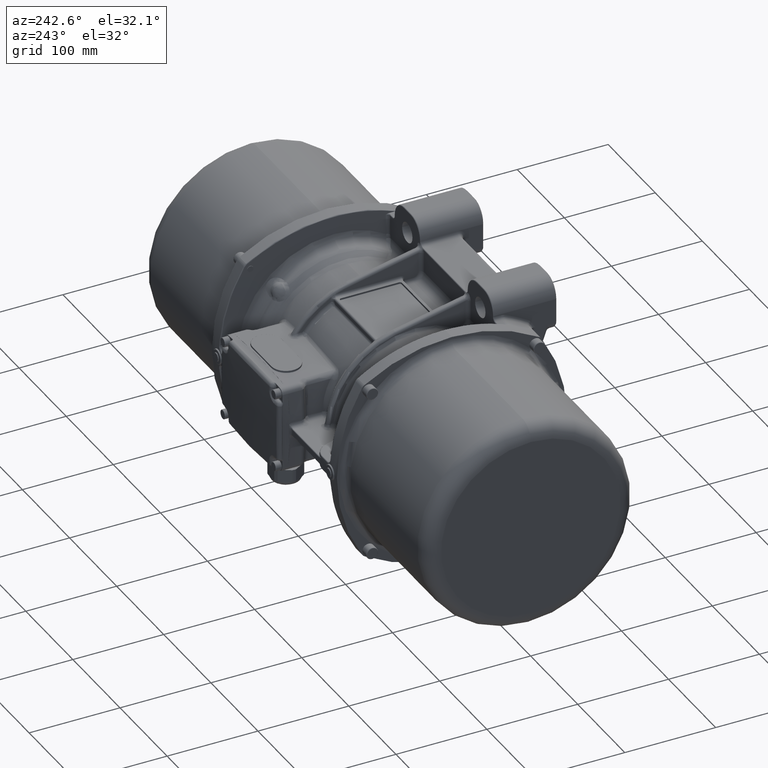
[diagram: clean part render]
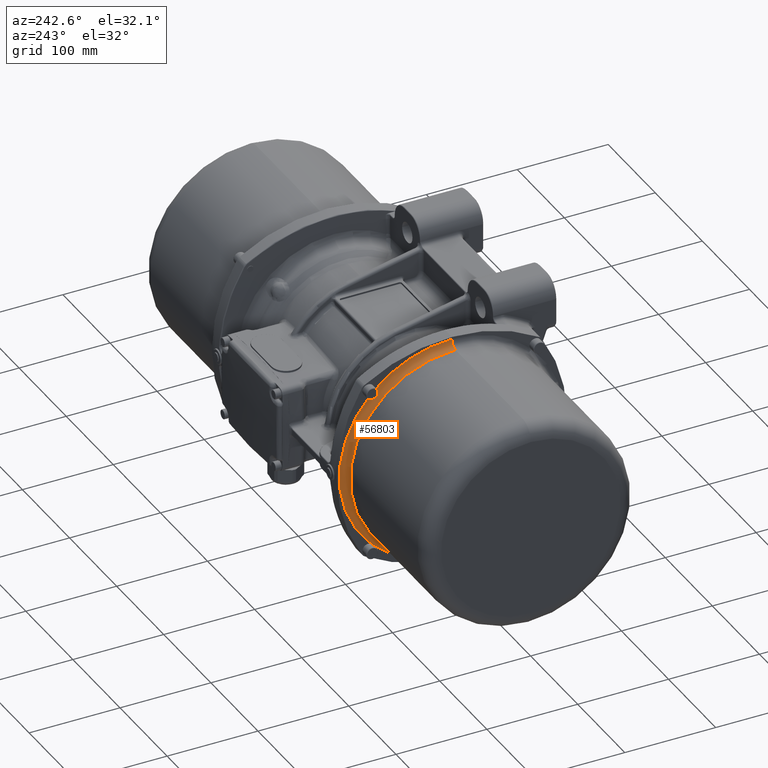
[diagram: same view with one face highlighted and labeled with its STEP entity id]
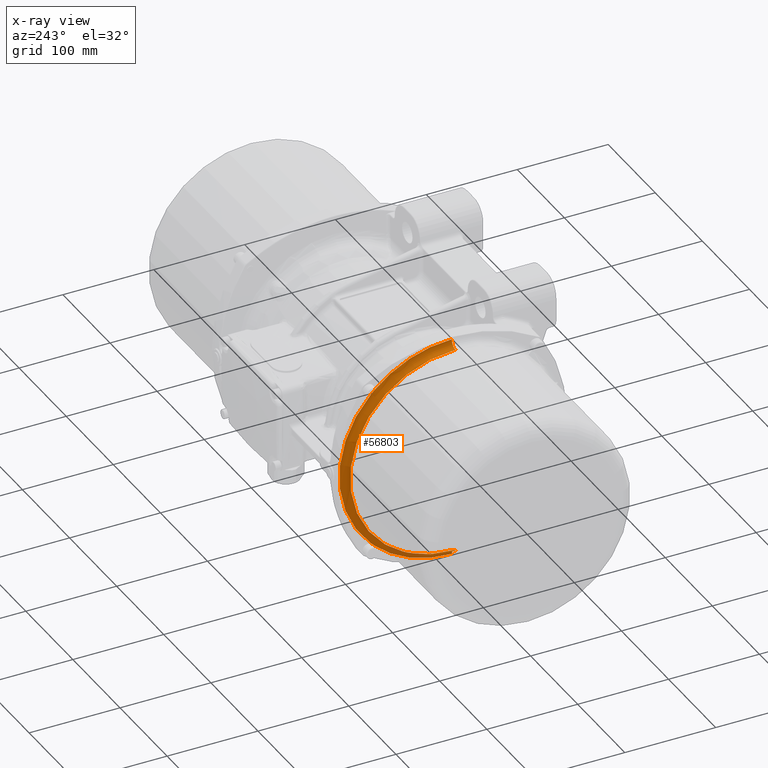
[diagram: x-ray of the same camera — body ghosted, the highlighted face saturated]
A machine part, auxiliary view. The second image highlights one B-rep face of the part: STEP entity #56803.
The next image is the same camera in x-ray: the body ghosted, the highlighted face saturated — about 9% of this face is hidden behind the body in this view.
In plain terms, the highlighted toroidal blend (fillet) surface has major radius 123.75 mm and minor (blend) radius 7.8 mm.
Its self-contained STEP definition (entity closure, byte-faithful):
#758 = VERTEX_POINT ( 'NONE', #99797 ) ;
#4023 = DIRECTION ( 'NONE',  ( 0.0000000000000000000, 0.0000000000000000000, -1.000000000000000000 ) ) ;
#4628 = AXIS2_PLACEMENT_3D ( 'NONE', #60983, #16210, #50496 ) ;
#9873 = EDGE_CURVE ( 'NONE', #12069, #758, #48205, .T. ) ;
#12069 = VERTEX_POINT ( 'NONE', #34511 ) ;
#12726 = DIRECTION ( 'NONE',  ( 0.0000000000000000000, 1.224646799147352000E-016, 1.000000000000000000 ) ) ;
#14062 = AXIS2_PLACEMENT_3D ( 'NONE', #136389, #91199, #70253 ) ;
#14494 = CARTESIAN_POINT ( 'NONE',  ( -132.7012508799867600, 88.22362580664417900, 86.57178570240186800 ) ) ;
#15941 = CARTESIAN_POINT ( 'NONE',  ( -132.7000000000000200, 86.26410856226151200, 88.72748206676629900 ) ) ;
#16210 = DIRECTION ( 'NONE',  ( 0.0000000000000000000, -1.000000000000000000, 0.0000000000000000000 ) ) ;
#16425 = CARTESIAN_POINT ( 'NONE',  ( -132.7000000000077200, 86.55527465708083000, 88.21192260499695700 ) ) ;
#16432 = VERTEX_POINT ( 'NONE', #117840 ) ;
#22793 = CIRCLE ( 'NONE', #14062, 123.7500000000000000 ) ;
#23104 = DIRECTION ( 'NONE',  ( 1.000000000000000000, 0.0000000000000000000, 0.0000000000000000000 ) ) ;
#24901 = CIRCLE ( 'NONE', #126215, 123.7500000000000000 ) ;
#26905 = CARTESIAN_POINT ( 'NONE',  ( -132.7040165105375700, 87.53068186429065600, 87.12431305537354800 ) ) ;
#28242 = ORIENTED_EDGE ( 'NONE', *, *, #41893, .T. ) ;
#28843 = ORIENTED_EDGE ( 'NONE', *, *, #141856, .F. ) ;
#29111 = CARTESIAN_POINT ( 'NONE',  ( -132.7040165105375400, 87.12431305537485600, -87.53068186428919300 ) ) ;
#31129 = B_SPLINE_CURVE_WITH_KNOTS ( 'NONE', 3,
 ( #15941, #16425, #96039, #26905, #59727, #14494, #49258, #71692 ),
 .UNSPECIFIED., .F., .F.,
 ( 4, 2, 2, 4 ),
 ( 0.0000000000000000000, 0.001751077840514143100, 0.002626616760771229500, 0.003502155681028315600 ),
 .UNSPECIFIED. ) ;
#32396 = VERTEX_POINT ( 'NONE', #53703 ) ;
#34511 = CARTESIAN_POINT ( 'NONE',  ( -132.7000000000000200, 1.515500413944849700E-014, 123.7500000000000000 ) ) ;
#38800 = CARTESIAN_POINT ( 'NONE',  ( -132.7000000000000200, 0.0000000000000000000, 0.0000000000000000000 ) ) ;
#40560 = CARTESIAN_POINT ( 'NONE',  ( -132.7000000000000200, 86.26410856225750500, -88.72748206677360400 ) ) ;
#40905 = CARTESIAN_POINT ( 'NONE',  ( -132.7000000000000200, 86.26410856226151200, 88.72748206676629900 ) ) ;
#41893 = EDGE_CURVE ( 'NONE', #32396, #91279, #141179, .T. ) ;
#43521 = CIRCLE ( 'NONE', #83579, 123.7500000000000000 ) ;
#45543 = CARTESIAN_POINT ( 'NONE',  ( -140.5000000000000000, 1.515500413944849700E-014, 123.7500000000000000 ) ) ;
#48052 = TOROIDAL_SURFACE ( 'NONE', #105033, 123.7500000000000000, 7.799999999999999800 ) ;
#48205 = CIRCLE ( 'NONE', #141357, 7.800000000000001600 ) ;
#49258 = CARTESIAN_POINT ( 'NONE',  ( -132.7000000000036800, 88.46970000156798600, 86.40969292798925500 ) ) ;
#50496 = DIRECTION ( 'NONE',  ( 0.0000000000000000000, 0.0000000000000000000, -1.000000000000000000 ) ) ;
#53428 = CARTESIAN_POINT ( 'NONE',  ( -132.7032611614922400, 86.92852799374375600, -87.75455721922233500 ) ) ;
#53703 = CARTESIAN_POINT ( 'NONE',  ( -132.7000000000000200, 0.0000000000000000000, -123.7500000000000000 ) ) ;
#54201 = B_SPLINE_CURVE_WITH_KNOTS ( 'NONE', 3,
 ( #132031, #86807, #87310, #29111, #53428, #143984, #108141, #40560 ),
 .UNSPECIFIED., .F., .F.,
 ( 4, 2, 2, 4 ),
 ( 0.0000000000000000000, 0.001751077840513113300, 0.002626616760769655200, 0.003502155681026197100 ),
 .UNSPECIFIED. ) ;
#54462 = EDGE_CURVE ( 'NONE', #144986, #16432, #31129, .T. ) ;
#56803 = ADVANCED_FACE ( 'NONE', ( #124627 ), #48052, .F. ) ;
#57992 = DIRECTION ( 'NONE',  ( 0.0000000000000000000, 1.000000000000000000, -1.224646799147353200E-016 ) ) ;
#59582 = EDGE_CURVE ( 'NONE', #61975, #78608, #54201, .T. ) ;
#59727 = CARTESIAN_POINT ( 'NONE',  ( -132.7032611614922600, 87.75455721922401200, 86.92852799374239200 ) ) ;
#60983 = CARTESIAN_POINT ( 'NONE',  ( -140.5000000000000000, 0.0000000000000000000, -123.7500000000000000 ) ) ;
#61975 = VERTEX_POINT ( 'NONE', #128162 ) ;
#63845 = ORIENTED_EDGE ( 'NONE', *, *, #9873, .F. ) ;
#67940 = CARTESIAN_POINT ( 'NONE',  ( -140.5000000000000000, 0.0000000000000000000, -115.9500000000000000 ) ) ;
#69708 = ORIENTED_EDGE ( 'NONE', *, *, #59582, .T. ) ;
#70253 = DIRECTION ( 'NONE',  ( 0.0000000000000000000, 0.0000000000000000000, -1.000000000000000000 ) ) ;
#71692 = CARTESIAN_POINT ( 'NONE',  ( -132.7000000000000200, 88.72748206677519500, 86.26410856225651000 ) ) ;
#78608 = VERTEX_POINT ( 'NONE', #141818 ) ;
#83384 = CARTESIAN_POINT ( 'NONE',  ( -140.5000000000000000, 0.0000000000000000000, 0.0000000000000000000 ) ) ;
#83579 = AXIS2_PLACEMENT_3D ( 'NONE', #38800, #105450, #4023 ) ;
#84687 = AXIS2_PLACEMENT_3D ( 'NONE', #134942, #23104, #102666 ) ;
#86807 = CARTESIAN_POINT ( 'NONE',  ( -132.7000000000076600, 88.21192260499785200, -86.55527465708020400 ) ) ;
#87310 = CARTESIAN_POINT ( 'NONE',  ( -132.7039890162023700, 87.74720360761872900, -86.90894322148874100 ) ) ;
#89504 = CARTESIAN_POINT ( 'NONE',  ( -132.7000000000000200, 0.0000000000000000000, 0.0000000000000000000 ) ) ;
#91140 = EDGE_CURVE ( 'NONE', #61975, #16432, #24901, .T. ) ;
#91199 = DIRECTION ( 'NONE',  ( 1.000000000000000000, 0.0000000000000000000, 0.0000000000000000000 ) ) ;
#91279 = VERTEX_POINT ( 'NONE', #67940 ) ;
#92996 = EDGE_CURVE ( 'NONE', #32396, #78608, #22793, .T. ) ;
#95308 = DIRECTION ( 'NONE',  ( 1.000000000000000000, 0.0000000000000000000, 0.0000000000000000000 ) ) ;
#96039 = CARTESIAN_POINT ( 'NONE',  ( -132.7039890162023700, 86.90894322148965000, 87.74720360761762100 ) ) ;
#99546 = EDGE_LOOP ( 'NONE', ( #63845, #28843, #130143, #109760, #69708, #113262, #28242, #104457 ) ) ;
#99797 = CARTESIAN_POINT ( 'NONE',  ( -140.5000000000000000, 1.467739188778103000E-014, 115.9500000000000000 ) ) ;
#101398 = DIRECTION ( 'NONE',  ( 1.000000000000000000, 0.0000000000000000000, 0.0000000000000000000 ) ) ;
#102666 = DIRECTION ( 'NONE',  ( 0.0000000000000000000, 0.0000000000000000000, -1.000000000000000000 ) ) ;
#104457 = ORIENTED_EDGE ( 'NONE', *, *, #120992, .T. ) ;
#105033 = AXIS2_PLACEMENT_3D ( 'NONE', #83384, #95308, #128147 ) ;
#105450 = DIRECTION ( 'NONE',  ( 1.000000000000000000, 0.0000000000000000000, 0.0000000000000000000 ) ) ;
#108141 = CARTESIAN_POINT ( 'NONE',  ( -132.7000000000036600, 86.40969292799069000, -88.46970000156568400 ) ) ;
#109760 = ORIENTED_EDGE ( 'NONE', *, *, #91140, .F. ) ;
#113262 = ORIENTED_EDGE ( 'NONE', *, *, #92996, .F. ) ;
#117840 = CARTESIAN_POINT ( 'NONE',  ( -132.7000000000000200, 88.72748206677519500, 86.26410856225651000 ) ) ;
#120992 = EDGE_CURVE ( 'NONE', #91279, #758, #126482, .T. ) ;
#124627 = FACE_OUTER_BOUND ( 'NONE', #99546, .T. ) ;
#126215 = AXIS2_PLACEMENT_3D ( 'NONE', #89504, #101398, #146673 ) ;
#126482 = CIRCLE ( 'NONE', #84687, 115.9500000000000000 ) ;
#128147 = DIRECTION ( 'NONE',  ( 0.0000000000000000000, 0.0000000000000000000, -1.000000000000000000 ) ) ;
#128162 = CARTESIAN_POINT ( 'NONE',  ( -132.7000000000000200, 88.72748206676729400, -86.26410856226100100 ) ) ;
#130143 = ORIENTED_EDGE ( 'NONE', *, *, #54462, .T. ) ;
#132031 = CARTESIAN_POINT ( 'NONE',  ( -132.7000000000000200, 88.72748206676729400, -86.26410856226100100 ) ) ;
#134942 = CARTESIAN_POINT ( 'NONE',  ( -140.5000000000000000, 0.0000000000000000000, 0.0000000000000000000 ) ) ;
#136389 = CARTESIAN_POINT ( 'NONE',  ( -132.7000000000000200, 0.0000000000000000000, 0.0000000000000000000 ) ) ;
#141179 = CIRCLE ( 'NONE', #4628, 7.800000000000001600 ) ;
#141357 = AXIS2_PLACEMENT_3D ( 'NONE', #45543, #57992, #12726 ) ;
#141818 = CARTESIAN_POINT ( 'NONE',  ( -132.7000000000000200, 86.26410856225750500, -88.72748206677360400 ) ) ;
#141856 = EDGE_CURVE ( 'NONE', #144986, #12069, #43521, .T. ) ;
#143984 = CARTESIAN_POINT ( 'NONE',  ( -132.7012508799867300, 86.57178570240330400, -88.22362580664209000 ) ) ;
#144986 = VERTEX_POINT ( 'NONE', #40905 ) ;
#146673 = DIRECTION ( 'NONE',  ( 0.0000000000000000000, 0.0000000000000000000, -1.000000000000000000 ) ) ;